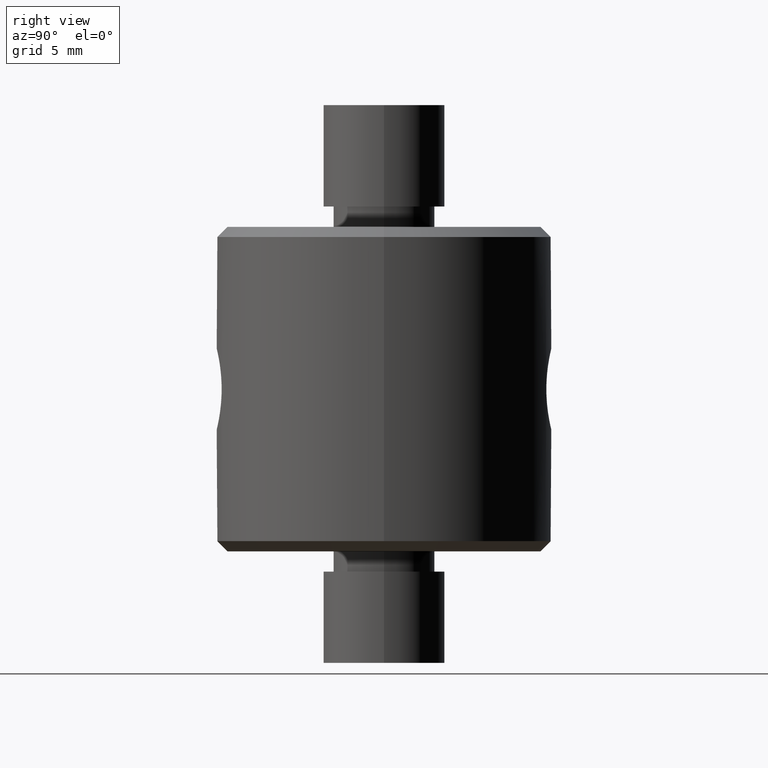
[diagram: clean part render]
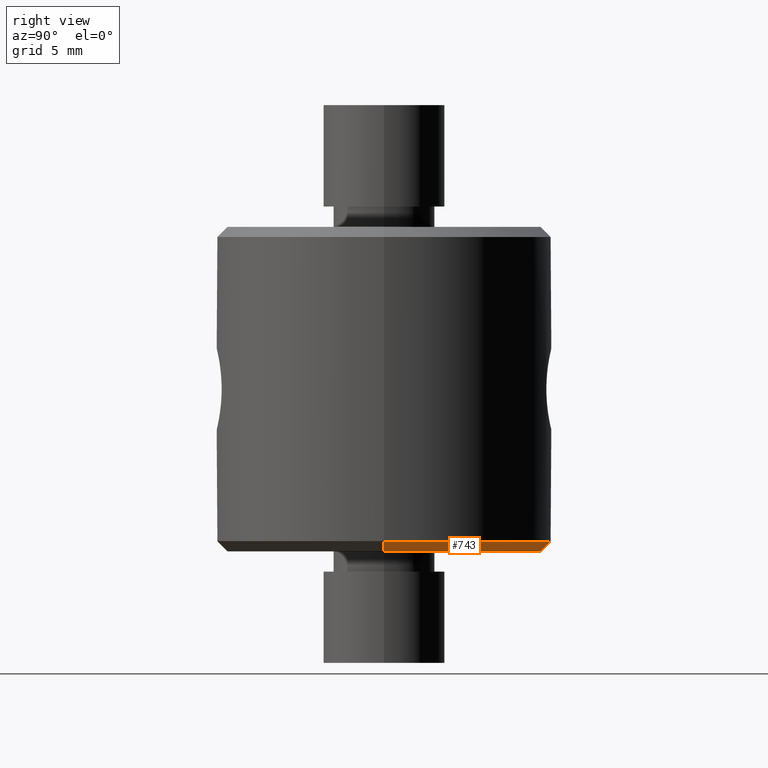
[diagram: same view with one face highlighted and labeled with its STEP entity id]
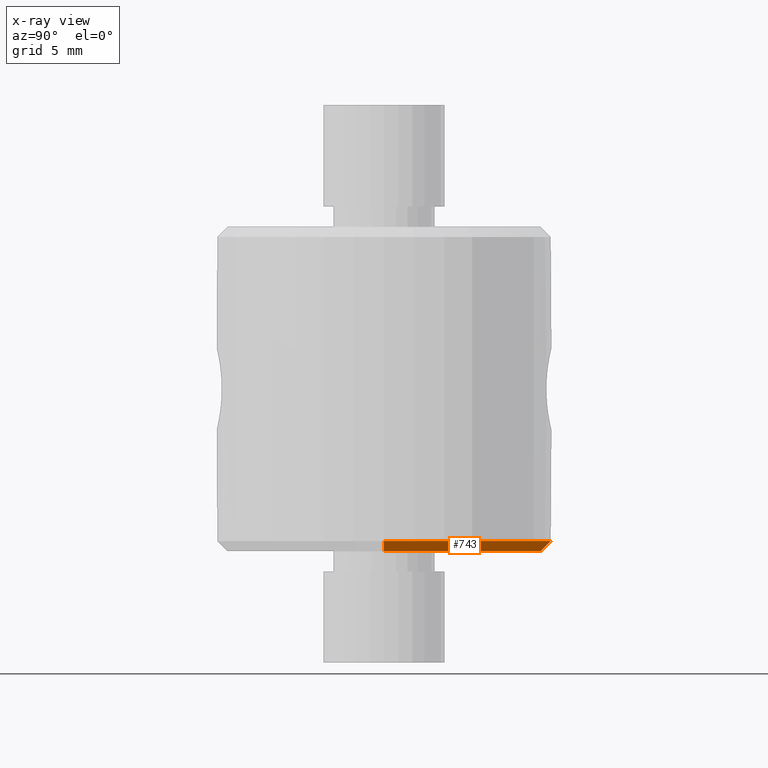
[diagram: x-ray of the same camera — body ghosted, the highlighted face saturated]
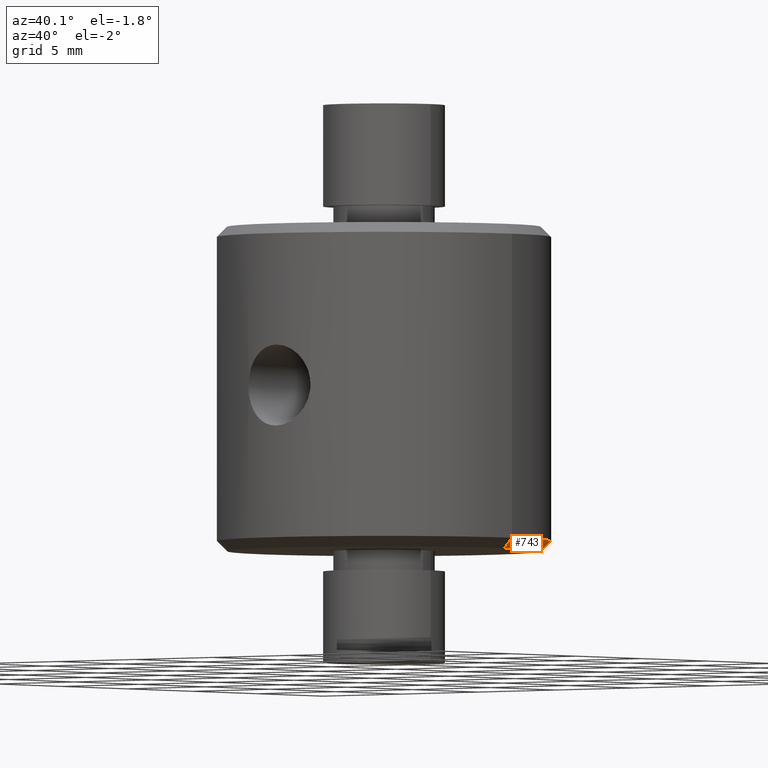
[diagram: same view with one face highlighted and labeled with its STEP entity id]
A machine part, right view. The second image highlights one B-rep face of the part: STEP entity #743.
The next image is the same camera in x-ray: the body ghosted, the highlighted face saturated — about 0% of this face is hidden behind the body in this view.
A second angle (auxiliary view) of the same face is appended — the face is thin or edge-on in the first view.
In plain terms, the highlighted conical surface has half-angle 45 deg.
Its self-contained STEP definition (entity closure, byte-faithful):
#5 = ORIENTED_EDGE ( 'NONE', *, *, #19, .F. ) ;
#7 = ORIENTED_EDGE ( 'NONE', *, *, #145, .F. ) ;
#8 = CARTESIAN_POINT ( 'NONE',  ( -7.749999999999991100, 9.797174393178819700E-016, -8.000000000000000000 ) ) ;
#16 = DIRECTION ( 'NONE',  ( -0.0000000000000000000, -0.0000000000000000000, 1.000000000000000000 ) ) ;
#19 = EDGE_CURVE ( 'NONE', #66, #226, #692, .T. ) ;
#24 = CIRCLE ( 'NONE', #102, 8.250000000000000000 ) ;
#29 = DIRECTION ( 'NONE',  ( 1.000000000000000000, 0.0000000000000000000, 0.0000000000000000000 ) ) ;
#39 = DIRECTION ( 'NONE',  ( 0.0000000000000000000, 0.0000000000000000000, -1.000000000000000000 ) ) ;
#66 = VERTEX_POINT ( 'NONE', #8 ) ;
#102 = AXIS2_PLACEMENT_3D ( 'NONE', #363, #16, #423 ) ;
#126 = FACE_OUTER_BOUND ( 'NONE', #702, .T. ) ;
#145 = EDGE_CURVE ( 'NONE', #507, #490, #24, .T. ) ;
#178 = EDGE_CURVE ( 'NONE', #226, #507, #339, .T. ) ;
#226 = VERTEX_POINT ( 'NONE', #668 ) ;
#285 = CARTESIAN_POINT ( 'NONE',  ( 8.250000000000000000, 0.0000000000000000000, -7.499999999999996400 ) ) ;
#323 = CARTESIAN_POINT ( 'NONE',  ( 0.0000000000000000000, 0.0000000000000000000, -7.499999999999996400 ) ) ;
#326 = DIRECTION ( 'NONE',  ( -1.000000000000000000, 0.0000000000000000000, 0.0000000000000000000 ) ) ;
#332 = AXIS2_PLACEMENT_3D ( 'NONE', #389, #39, #326 ) ;
#337 = CARTESIAN_POINT ( 'NONE',  ( -8.250000000000000000, 1.010333609296566500E-015, -7.499999999999996400 ) ) ;
#339 = LINE ( 'NONE', #361, #476 ) ;
#345 = VECTOR ( 'NONE', #647, 1000.000000000000000 ) ;
#347 = ORIENTED_EDGE ( 'NONE', *, *, #178, .F. ) ;
#361 = CARTESIAN_POINT ( 'NONE',  ( 8.250000000000000000, 0.0000000000000000000, -7.499999999999996400 ) ) ;
#363 = CARTESIAN_POINT ( 'NONE',  ( 0.0000000000000000000, 0.0000000000000000000, -7.499999999999996400 ) ) ;
#389 = CARTESIAN_POINT ( 'NONE',  ( 0.0000000000000000000, 0.0000000000000000000, -8.000000000000000000 ) ) ;
#423 = DIRECTION ( 'NONE',  ( -1.000000000000000000, 0.0000000000000000000, 0.0000000000000000000 ) ) ;
#425 = LINE ( 'NONE', #758, #345 ) ;
#471 = EDGE_CURVE ( 'NONE', #66, #490, #425, .T. ) ;
#476 = VECTOR ( 'NONE', #556, 1000.000000000000000 ) ;
#490 = VERTEX_POINT ( 'NONE', #337 ) ;
#507 = VERTEX_POINT ( 'NONE', #285 ) ;
#556 = DIRECTION ( 'NONE',  ( 0.7071067811865512400, 0.0000000000000000000, 0.7071067811865439100 ) ) ;
#588 = CONICAL_SURFACE ( 'NONE', #658, 8.250000000000000000, 0.7853981633974533900 ) ;
#647 = DIRECTION ( 'NONE',  ( -0.7071067811865512400, 8.659560562354978500E-017, 0.7071067811865439100 ) ) ;
#658 = AXIS2_PLACEMENT_3D ( 'NONE', #323, #675, #29 ) ;
#668 = CARTESIAN_POINT ( 'NONE',  ( 7.749999999999991100, 0.0000000000000000000, -8.000000000000000000 ) ) ;
#675 = DIRECTION ( 'NONE',  ( -0.0000000000000000000, -0.0000000000000000000, 1.000000000000000000 ) ) ;
#686 = ORIENTED_EDGE ( 'NONE', *, *, #471, .T. ) ;
#692 = CIRCLE ( 'NONE', #332, 7.749999999999991100 ) ;
#702 = EDGE_LOOP ( 'NONE', ( #5, #686, #7, #347 ) ) ;
#743 = ADVANCED_FACE ( 'NONE', ( #126 ), #588, .T. ) ;
#758 = CARTESIAN_POINT ( 'NONE',  ( -8.250000000000000000, 1.010333609296566500E-015, -7.499999999999996400 ) ) ;